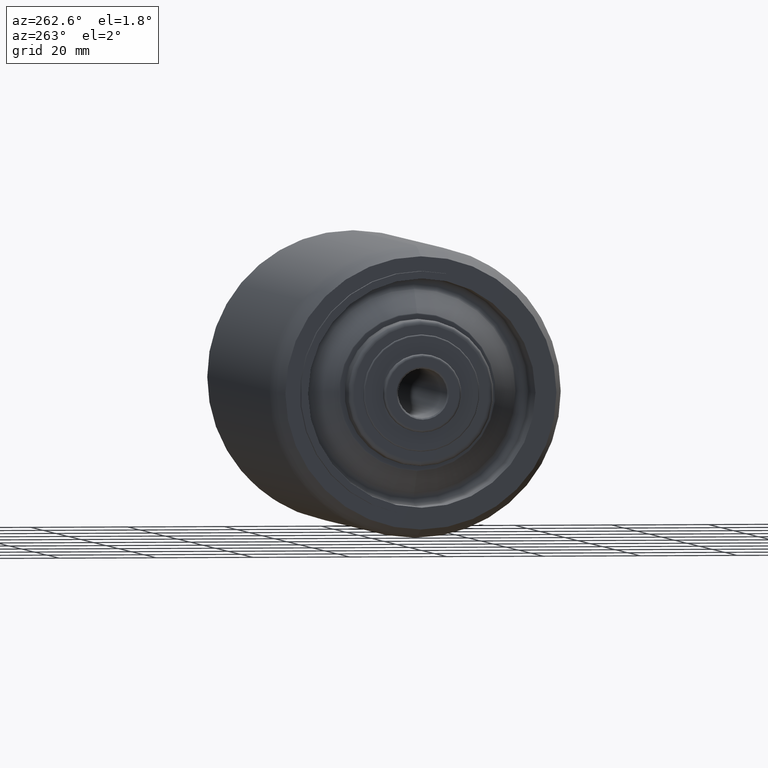
[diagram: clean part render]
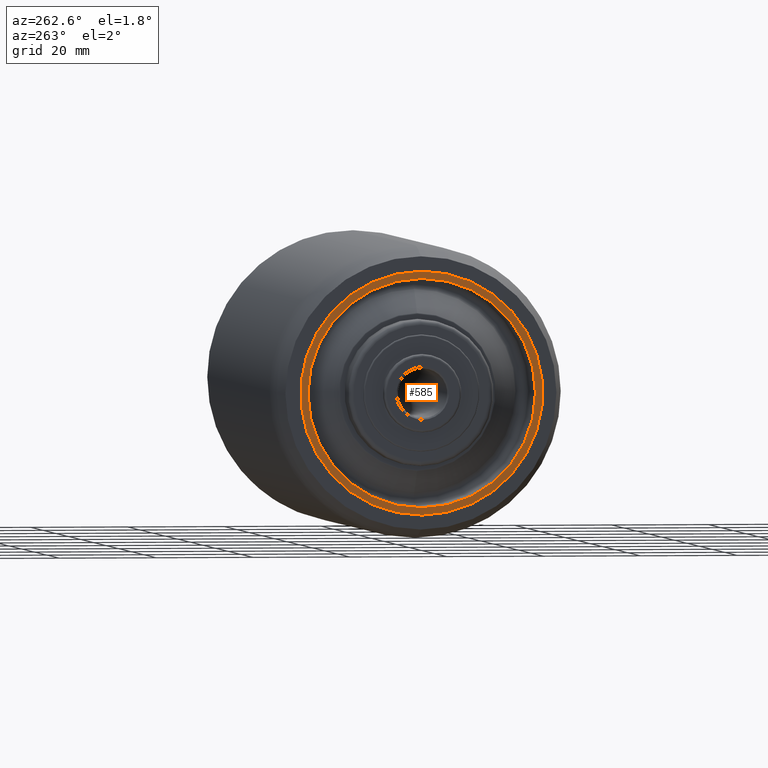
[diagram: same view with one face highlighted and labeled with its STEP entity id]
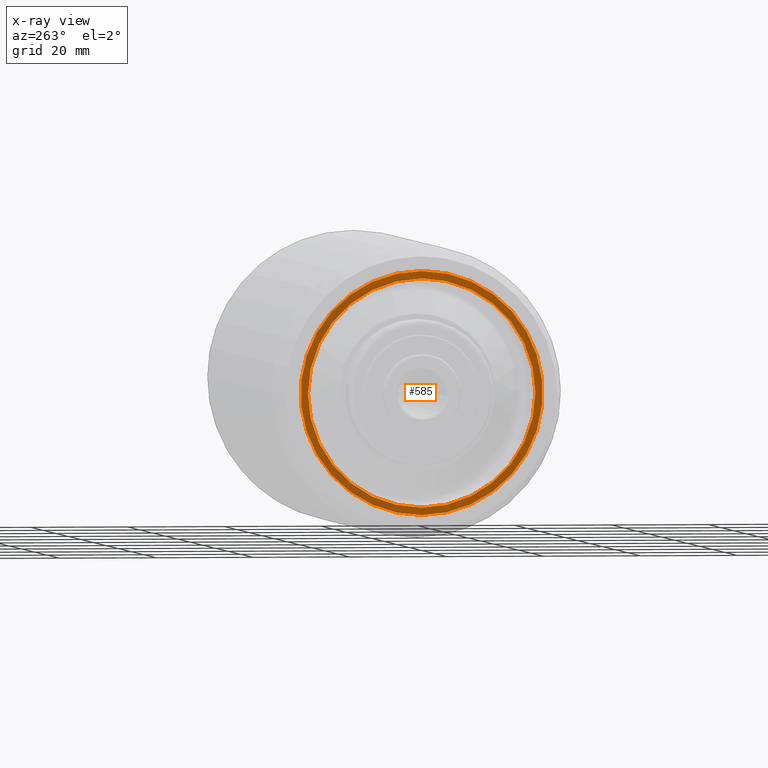
[diagram: x-ray of the same camera — body ghosted, the highlighted face saturated]
A machine part, auxiliary view. The second image highlights one B-rep face of the part: STEP entity #585.
The next image is the same camera in x-ray: the body ghosted, the highlighted face saturated — about 0% of this face is hidden behind the body in this view.
In plain terms, the highlighted planar face has unit normal (1, 0, 0).
Its self-contained STEP definition (entity closure, byte-faithful):
#74 = VERTEX_POINT ( 'NONE', #174 ) ;
#88 = CARTESIAN_POINT ( 'NONE',  ( -60.00000000000000000, 25.00000000000000000, 0.0000000000000000000 ) ) ;
#110 = DIRECTION ( 'NONE',  ( 0.0000000000000000000, 0.0000000000000000000, 1.000000000000000000 ) ) ;
#174 = CARTESIAN_POINT ( 'NONE',  ( -60.00000000000000000, 0.0000000000000000000, 25.00000000000000000 ) ) ;
#241 = CARTESIAN_POINT ( 'NONE',  ( -60.00000000000000000, 0.0000000000000000000, 0.0000000000000000000 ) ) ;
#258 = AXIS2_PLACEMENT_3D ( 'NONE', #394, #994, #110 ) ;
#276 = CARTESIAN_POINT ( 'NONE',  ( -60.00000000000000000, 3.061616997868383043E-15, -25.00000000000000000 ) ) ;
#388 = AXIS2_PLACEMENT_3D ( 'NONE', #88, #534, #1597 ) ;
#394 = CARTESIAN_POINT ( 'NONE',  ( -60.00000000000000000, 0.0000000000000000000, 0.0000000000000000000 ) ) ;
#405 = PLANE ( 'NONE',  #388 ) ;
#435 = CIRCLE ( 'NONE', #1336, 23.49999999999997868 ) ;
#454 = FACE_OUTER_BOUND ( 'NONE', #1259, .T. ) ;
#528 = DIRECTION ( 'NONE',  ( -1.000000000000000000, -0.0000000000000000000, -0.0000000000000000000 ) ) ;
#534 = DIRECTION ( 'NONE',  ( 1.000000000000000000, 0.0000000000000000000, 0.0000000000000000000 ) ) ;
#535 = CARTESIAN_POINT ( 'NONE',  ( -60.00000000000000000, 0.0000000000000000000, 0.0000000000000000000 ) ) ;
#575 = DIRECTION ( 'NONE',  ( 0.0000000000000000000, 0.0000000000000000000, 1.000000000000000000 ) ) ;
#585 = ADVANCED_FACE ( 'NONE', ( #1304, #454 ), #405, .F. ) ;
#636 = AXIS2_PLACEMENT_3D ( 'NONE', #1195, #1185, #575 ) ;
#772 = CIRCLE ( 'NONE', #258, 23.49999999999997868 ) ;
#818 = ORIENTED_EDGE ( 'NONE', *, *, #1377, .F. ) ;
#976 = DIRECTION ( 'NONE',  ( 0.0000000000000000000, 0.0000000000000000000, 1.000000000000000000 ) ) ;
#980 = CARTESIAN_POINT ( 'NONE',  ( -60.00000000000000000, 2.877919977996277954E-15, -23.49999999999997868 ) ) ;
#990 = CIRCLE ( 'NONE', #636, 25.00000000000000000 ) ;
#991 = DIRECTION ( 'NONE',  ( 0.0000000000000000000, 0.0000000000000000000, 1.000000000000000000 ) ) ;
#994 = DIRECTION ( 'NONE',  ( -1.000000000000000000, -0.0000000000000000000, -0.0000000000000000000 ) ) ;
#1001 = ORIENTED_EDGE ( 'NONE', *, *, #1089, .T. ) ;
#1069 = VERTEX_POINT ( 'NONE', #276 ) ;
#1089 = EDGE_CURVE ( 'NONE', #74, #1069, #990, .T. ) ;
#1136 = CARTESIAN_POINT ( 'NONE',  ( -60.00000000000000000, 0.0000000000000000000, 23.49999999999997868 ) ) ;
#1183 = EDGE_LOOP ( 'NONE', ( #1552, #818 ) ) ;
#1185 = DIRECTION ( 'NONE',  ( -1.000000000000000000, -0.0000000000000000000, -0.0000000000000000000 ) ) ;
#1195 = CARTESIAN_POINT ( 'NONE',  ( -60.00000000000000000, 0.0000000000000000000, 0.0000000000000000000 ) ) ;
#1259 = EDGE_LOOP ( 'NONE', ( #1001, #1670 ) ) ;
#1304 = FACE_BOUND ( 'NONE', #1183, .T. ) ;
#1336 = AXIS2_PLACEMENT_3D ( 'NONE', #241, #528, #976 ) ;
#1377 = EDGE_CURVE ( 'NONE', #1439, #1912, #435, .T. ) ;
#1426 = DIRECTION ( 'NONE',  ( -1.000000000000000000, -0.0000000000000000000, -0.0000000000000000000 ) ) ;
#1439 = VERTEX_POINT ( 'NONE', #980 ) ;
#1495 = EDGE_CURVE ( 'NONE', #1912, #1439, #772, .T. ) ;
#1552 = ORIENTED_EDGE ( 'NONE', *, *, #1495, .F. ) ;
#1597 = DIRECTION ( 'NONE',  ( 0.0000000000000000000, 0.0000000000000000000, -1.000000000000000000 ) ) ;
#1670 = ORIENTED_EDGE ( 'NONE', *, *, #1867, .T. ) ;
#1724 = AXIS2_PLACEMENT_3D ( 'NONE', #535, #1426, #991 ) ;
#1846 = CIRCLE ( 'NONE', #1724, 25.00000000000000000 ) ;
#1867 = EDGE_CURVE ( 'NONE', #1069, #74, #1846, .T. ) ;
#1912 = VERTEX_POINT ( 'NONE', #1136 ) ;